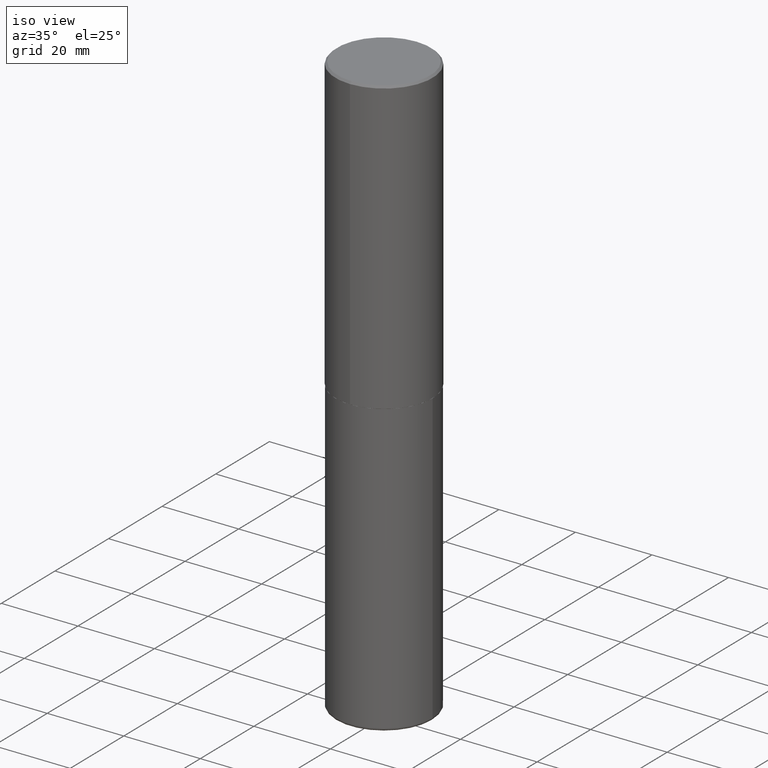
[diagram: clean part render]
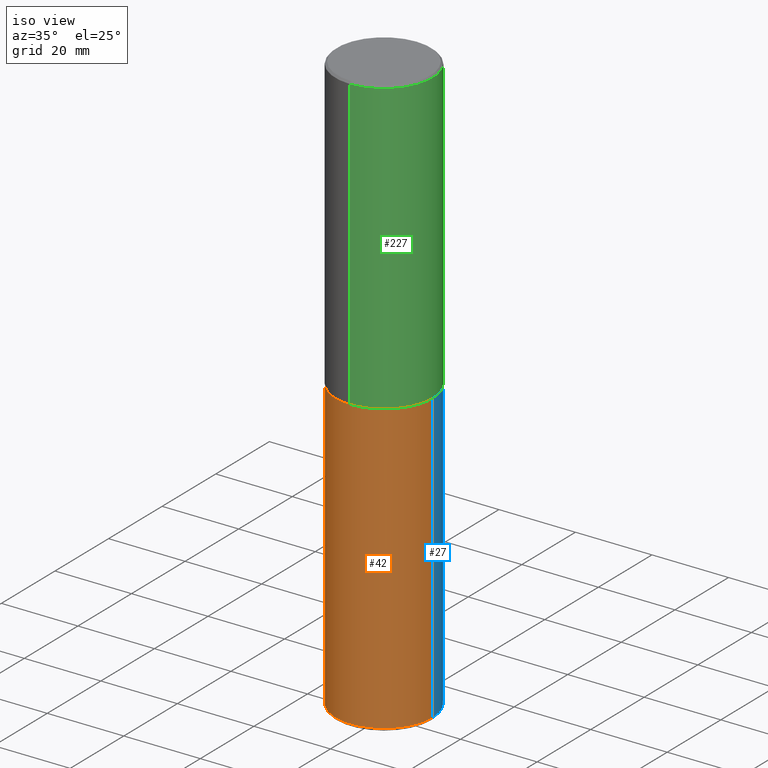
[diagram: same view with three faces highlighted in distinct colors, each labeled with its STEP entity id]
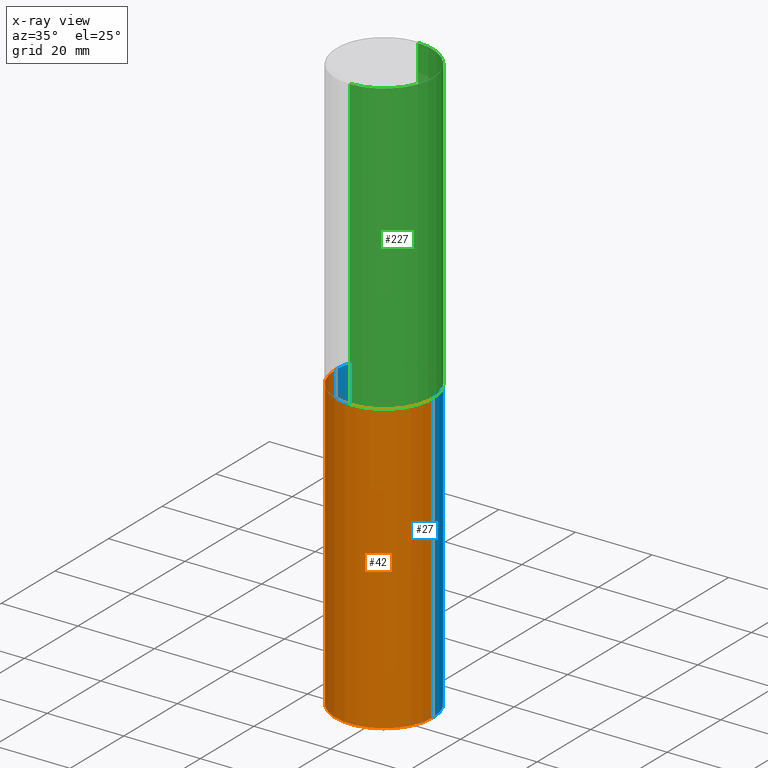
[diagram: x-ray of the same camera — body ghosted, the three highlighted faces saturated]
A machine part, iso view with three faces highlighted in distinct colors.
The next image is the same camera in x-ray (body ghosted, the three faces saturated) — at least one of them is partly hidden behind the body in this view.
Their STEP definitions:

[orange] entity #42 — the highlighted cylindrical surface (partial cylindrical patch) has radius 12.7 mm, axis along (-0, 0, 1).
#2 = DIRECTION ( 'NONE',  ( -2.445468806185136877E-29, 3.491481338843145188E-15, 1.000000000000000000 ) ) ;
#19 = CARTESIAN_POINT ( 'NONE',  ( -0.5000000000000000000, -1.210658012591100613E-14, -3.000000000000000444 ) ) ;
#25 = VERTEX_POINT ( 'NONE', #19 ) ;
#34 = LINE ( 'NONE', #209, #109 ) ;
#40 = CARTESIAN_POINT ( 'NONE',  ( 0.5000000000000000000, -1.396592535537257129E-14, -3.000000000000000444 ) ) ;
#42 = ADVANCED_FACE ( 'NONE', ( #73 ), #342, .T. ) ;
#44 = EDGE_LOOP ( 'NONE', ( #373, #402, #108, #150 ) ) ;
#73 = FACE_OUTER_BOUND ( 'NONE', #44, .T. ) ;
#80 = CIRCLE ( 'NONE', #310, 0.5000000000000000000 ) ;
#108 = ORIENTED_EDGE ( 'NONE', *, *, #366, .T. ) ;
#109 = VECTOR ( 'NONE', #2, 39.37007874015748143 ) ;
#150 = ORIENTED_EDGE ( 'NONE', *, *, #251, .F. ) ;
#156 = DIRECTION ( 'NONE',  ( -2.445468806185136597E-29, 3.491481338843145583E-15, 1.000000000000000000 ) ) ;
#165 = CARTESIAN_POINT ( 'NONE',  ( 0.5000000000000003331, -2.433562493173670954E-14, -5.969999999999999751 ) ) ;
#166 = EDGE_CURVE ( 'NONE', #271, #25, #34, .T. ) ;
#176 = AXIS2_PLACEMENT_3D ( 'NONE', #337, #345, #191 ) ;
#181 = DIRECTION ( 'NONE',  ( 1.000000000000000000, -6.982962677686266711E-15, 0.000000000000000000 ) ) ;
#191 = DIRECTION ( 'NONE',  ( 1.000000000000000000, -6.982962677686266711E-15, 4.876176775795935793E-29 ) ) ;
#209 = CARTESIAN_POINT ( 'NONE',  ( -0.5000000000000000000, 3.552713678800500929E-15, -2.459467545127452891E-29 ) ) ;
#217 = CARTESIAN_POINT ( 'NONE',  ( 1.459944877292526494E-28, -2.084414359289357934E-14, -5.969999999999999751 ) ) ;
#244 = AXIS2_PLACEMENT_3D ( 'NONE', #217, #156, #381 ) ;
#251 = EDGE_CURVE ( 'NONE', #25, #346, #80, .T. ) ;
#256 = CIRCLE ( 'NONE', #244, 0.4999999999999999445 ) ;
#271 = VERTEX_POINT ( 'NONE', #320 ) ;
#293 = CARTESIAN_POINT ( 'NONE',  ( 0.5000000000000000000, -3.491481338843133355E-15, 2.438088387897967896E-29 ) ) ;
#310 = AXIS2_PLACEMENT_3D ( 'NONE', #362, #361, #181 ) ;
#320 = CARTESIAN_POINT ( 'NONE',  ( -0.5000000000000003331, -1.729142991409307210E-14, -5.969999999999999751 ) ) ;
#322 = VERTEX_POINT ( 'NONE', #165 ) ;
#337 = CARTESIAN_POINT ( 'NONE',  ( 0.000000000000000000, 0.000000000000000000, 0.000000000000000000 ) ) ;
#342 = CYLINDRICAL_SURFACE ( 'NONE', #176, 0.5000000000000000000 ) ;
#345 = DIRECTION ( 'NONE',  ( -2.445468806185136597E-29, 3.491481338843145583E-15, 1.000000000000000000 ) ) ;
#346 = VERTEX_POINT ( 'NONE', #40 ) ;
#361 = DIRECTION ( 'NONE',  ( -2.445468806185136597E-29, 3.491481338843145583E-15, 1.000000000000000000 ) ) ;
#362 = CARTESIAN_POINT ( 'NONE',  ( 7.336406418555409790E-29, -1.047444401652943635E-14, -3.000000000000000444 ) ) ;
#366 = EDGE_CURVE ( 'NONE', #322, #346, #405, .T. ) ;
#373 = ORIENTED_EDGE ( 'NONE', *, *, #166, .F. ) ;
#381 = DIRECTION ( 'NONE',  ( 1.000000000000000000, -6.982962677686263555E-15, 0.000000000000000000 ) ) ;
#383 = EDGE_CURVE ( 'NONE', #271, #322, #256, .T. ) ;
#389 = VECTOR ( 'NONE', #399, 39.37007874015748143 ) ;
#399 = DIRECTION ( 'NONE',  ( -2.445468806185136877E-29, 3.491481338843145188E-15, 1.000000000000000000 ) ) ;
#402 = ORIENTED_EDGE ( 'NONE', *, *, #383, .T. ) ;
#405 = LINE ( 'NONE', #293, #389 ) ;

[blue] entity #27 — the highlighted cylindrical surface (partial cylindrical patch) has radius 12.7 mm, axis along (-0, 0, 1).
#2 = DIRECTION ( 'NONE',  ( -2.445468806185136877E-29, 3.491481338843145188E-15, 1.000000000000000000 ) ) ;
#19 = CARTESIAN_POINT ( 'NONE',  ( -0.5000000000000000000, -1.210658012591100613E-14, -3.000000000000000444 ) ) ;
#22 = ORIENTED_EDGE ( 'NONE', *, *, #166, .T. ) ;
#25 = VERTEX_POINT ( 'NONE', #19 ) ;
#27 = ADVANCED_FACE ( 'NONE', ( #257 ), #262, .T. ) ;
#34 = LINE ( 'NONE', #209, #109 ) ;
#40 = CARTESIAN_POINT ( 'NONE',  ( 0.5000000000000000000, -1.396592535537257129E-14, -3.000000000000000444 ) ) ;
#51 = ORIENTED_EDGE ( 'NONE', *, *, #366, .F. ) ;
#53 = DIRECTION ( 'NONE',  ( -2.445468806185136597E-29, 3.491481338843145583E-15, 1.000000000000000000 ) ) ;
#98 = DIRECTION ( 'NONE',  ( 1.000000000000000000, -6.982962677686263555E-15, 0.000000000000000000 ) ) ;
#109 = VECTOR ( 'NONE', #2, 39.37007874015748143 ) ;
#110 = AXIS2_PLACEMENT_3D ( 'NONE', #368, #374, #98 ) ;
#120 = CARTESIAN_POINT ( 'NONE',  ( 7.336406418555409790E-29, -1.047444401652943635E-14, -3.000000000000000444 ) ) ;
#152 = EDGE_CURVE ( 'NONE', #346, #25, #287, .T. ) ;
#164 = ORIENTED_EDGE ( 'NONE', *, *, #152, .F. ) ;
#165 = CARTESIAN_POINT ( 'NONE',  ( 0.5000000000000003331, -2.433562493173670954E-14, -5.969999999999999751 ) ) ;
#166 = EDGE_CURVE ( 'NONE', #271, #25, #34, .T. ) ;
#168 = DIRECTION ( 'NONE',  ( -2.445468806185136597E-29, 3.491481338843145583E-15, 1.000000000000000000 ) ) ;
#209 = CARTESIAN_POINT ( 'NONE',  ( -0.5000000000000000000, 3.552713678800500929E-15, -2.459467545127452891E-29 ) ) ;
#234 = DIRECTION ( 'NONE',  ( 1.000000000000000000, -6.982962677686266711E-15, 4.876176775795935793E-29 ) ) ;
#257 = FACE_OUTER_BOUND ( 'NONE', #258, .T. ) ;
#258 = EDGE_LOOP ( 'NONE', ( #325, #22, #164, #51 ) ) ;
#262 = CYLINDRICAL_SURFACE ( 'NONE', #329, 0.5000000000000000000 ) ;
#271 = VERTEX_POINT ( 'NONE', #320 ) ;
#287 = CIRCLE ( 'NONE', #351, 0.5000000000000000000 ) ;
#293 = CARTESIAN_POINT ( 'NONE',  ( 0.5000000000000000000, -3.491481338843133355E-15, 2.438088387897967896E-29 ) ) ;
#313 = DIRECTION ( 'NONE',  ( 1.000000000000000000, -6.982962677686266711E-15, 0.000000000000000000 ) ) ;
#320 = CARTESIAN_POINT ( 'NONE',  ( -0.5000000000000003331, -1.729142991409307210E-14, -5.969999999999999751 ) ) ;
#322 = VERTEX_POINT ( 'NONE', #165 ) ;
#325 = ORIENTED_EDGE ( 'NONE', *, *, #407, .T. ) ;
#329 = AXIS2_PLACEMENT_3D ( 'NONE', #382, #168, #234 ) ;
#346 = VERTEX_POINT ( 'NONE', #40 ) ;
#351 = AXIS2_PLACEMENT_3D ( 'NONE', #120, #53, #313 ) ;
#366 = EDGE_CURVE ( 'NONE', #322, #346, #405, .T. ) ;
#368 = CARTESIAN_POINT ( 'NONE',  ( 1.459944877292526494E-28, -2.084414359289357934E-14, -5.969999999999999751 ) ) ;
#374 = DIRECTION ( 'NONE',  ( -2.445468806185136597E-29, 3.491481338843145583E-15, 1.000000000000000000 ) ) ;
#382 = CARTESIAN_POINT ( 'NONE',  ( 0.000000000000000000, 0.000000000000000000, 0.000000000000000000 ) ) ;
#389 = VECTOR ( 'NONE', #399, 39.37007874015748143 ) ;
#399 = DIRECTION ( 'NONE',  ( -2.445468806185136877E-29, 3.491481338843145188E-15, 1.000000000000000000 ) ) ;
#405 = LINE ( 'NONE', #293, #389 ) ;
#407 = EDGE_CURVE ( 'NONE', #322, #271, #410, .T. ) ;
#410 = CIRCLE ( 'NONE', #110, 0.4999999999999999445 ) ;

[green] entity #227 — the highlighted cylindrical surface (partial cylindrical patch) has radius 12.7 mm, axis along (-0, 0, 1).
#33 = DIRECTION ( 'NONE',  ( -2.444898033699712212E-29, 3.492298717528625990E-15, 1.000000000000000000 ) ) ;
#45 = EDGE_CURVE ( 'NONE', #276, #225, #333, .T. ) ;
#47 = CARTESIAN_POINT ( 'NONE',  ( -3.491481338843133750E-15, -0.5000000000000001110, 1.746149358764313390E-15 ) ) ;
#49 = CARTESIAN_POINT ( 'NONE',  ( -3.491481338843061569E-15, -0.5000000000000107692, -2.998999999999998778 ) ) ;
#50 = DIRECTION ( 'NONE',  ( -2.444898033699711931E-29, 3.492298717528626385E-15, 1.000000000000000000 ) ) ;
#65 = CIRCLE ( 'NONE', #298, 0.5000000000000000000 ) ;
#76 = VERTEX_POINT ( 'NONE', #132 ) ;
#91 = CARTESIAN_POINT ( 'NONE',  ( -3.430248998885764992E-15, -0.5000000000000001110, -0.01999999999999835937 ) ) ;
#106 = LINE ( 'NONE', #328, #364 ) ;
#132 = CARTESIAN_POINT ( 'NONE',  ( 3.491481338843133355E-15, 0.4999999999999999445, -0.02000000000000185310 ) ) ;
#134 = CARTESIAN_POINT ( 'NONE',  ( 3.552713678800539584E-15, 0.4999999999999898970, -2.999000000000001886 ) ) ;
#136 = VECTOR ( 'NONE', #50, 39.37007874015748143 ) ;
#139 = ORIENTED_EDGE ( 'NONE', *, *, #207, .T. ) ;
#147 = DIRECTION ( 'NONE',  ( -6.982962677686266711E-15, -1.000000000000000000, 3.278217592397114284E-15 ) ) ;
#154 = DIRECTION ( 'NONE',  ( -2.444898033699712212E-29, 3.492298717528625990E-15, 1.000000000000000000 ) ) ;
#159 = EDGE_CURVE ( 'NONE', #225, #76, #65, .T. ) ;
#173 = DIRECTION ( 'NONE',  ( -6.982962677686265922E-15, -1.000000000000000000, 3.491643216902136408E-15 ) ) ;
#175 = ORIENTED_EDGE ( 'NONE', *, *, #159, .F. ) ;
#183 = CYLINDRICAL_SURFACE ( 'NONE', #270, 0.5000000000000001110 ) ;
#187 = DIRECTION ( 'NONE',  ( -6.982962677686265922E-15, -1.000000000000000000, 3.492298717528625990E-15 ) ) ;
#207 = EDGE_CURVE ( 'NONE', #276, #365, #254, .T. ) ;
#215 = FACE_OUTER_BOUND ( 'NONE', #267, .T. ) ;
#225 = VERTEX_POINT ( 'NONE', #91 ) ;
#227 = ADVANCED_FACE ( 'NONE', ( #215 ), #183, .T. ) ;
#237 = AXIS2_PLACEMENT_3D ( 'NONE', #397, #33, #147 ) ;
#242 = ORIENTED_EDGE ( 'NONE', *, *, #45, .F. ) ;
#254 = CIRCLE ( 'NONE', #237, 0.5000000000000002220 ) ;
#265 = DIRECTION ( 'NONE',  ( -2.444898033699711931E-29, 3.492298717528626385E-15, 1.000000000000000000 ) ) ;
#267 = EDGE_LOOP ( 'NONE', ( #139, #339, #175, #242 ) ) ;
#270 = AXIS2_PLACEMENT_3D ( 'NONE', #367, #154, #187 ) ;
#276 = VERTEX_POINT ( 'NONE', #49 ) ;
#298 = AXIS2_PLACEMENT_3D ( 'NONE', #391, #355, #173 ) ;
#328 = CARTESIAN_POINT ( 'NONE',  ( 3.552713678800501718E-15, 0.5000000000000001110, -1.746149358764313390E-15 ) ) ;
#333 = LINE ( 'NONE', #47, #136 ) ;
#334 = EDGE_CURVE ( 'NONE', #365, #76, #106, .T. ) ;
#339 = ORIENTED_EDGE ( 'NONE', *, *, #334, .T. ) ;
#355 = DIRECTION ( 'NONE',  ( -2.444898033699712212E-29, 3.492298717528625990E-15, 1.000000000000000000 ) ) ;
#364 = VECTOR ( 'NONE', #265, 39.37007874015748143 ) ;
#365 = VERTEX_POINT ( 'NONE', #134 ) ;
#367 = CARTESIAN_POINT ( 'NONE',  ( 0.000000000000000000, 0.000000000000000000, 0.000000000000000000 ) ) ;
#391 = CARTESIAN_POINT ( 'NONE',  ( 4.889796067399450837E-31, -6.984597435057287381E-17, -0.02000000000000010797 ) ) ;
#397 = CARTESIAN_POINT ( 'NONE',  ( 7.332249203065438921E-29, -1.047340385386834930E-14, -2.999000000000000554 ) ) ;